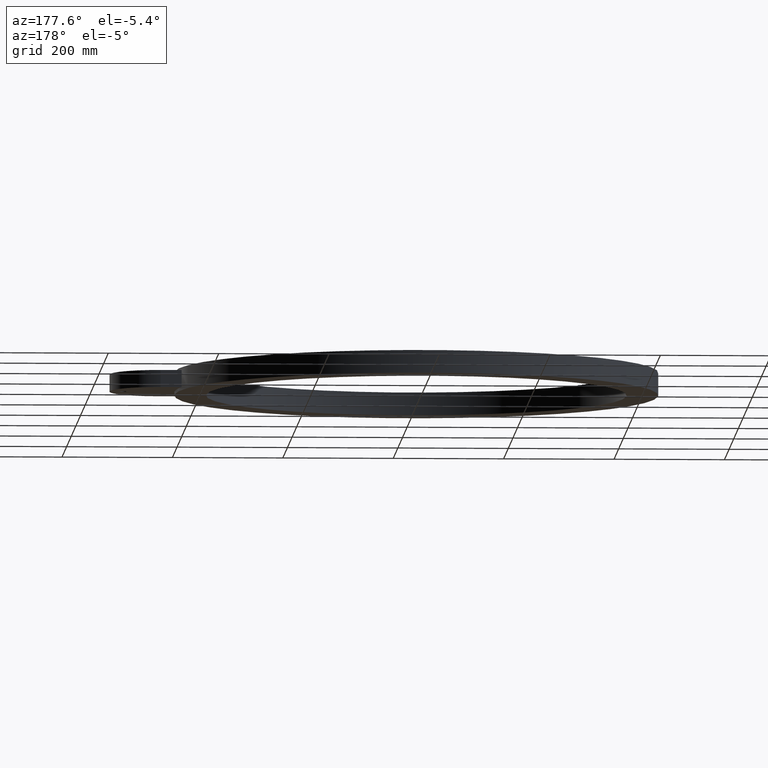
[diagram: clean part render]
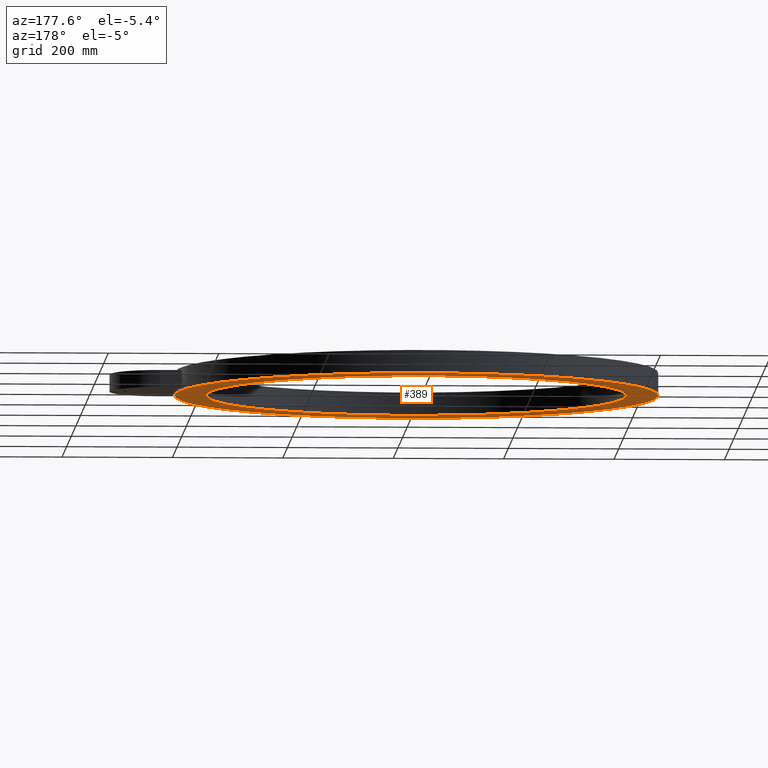
[diagram: same view with one face highlighted and labeled with its STEP entity id]
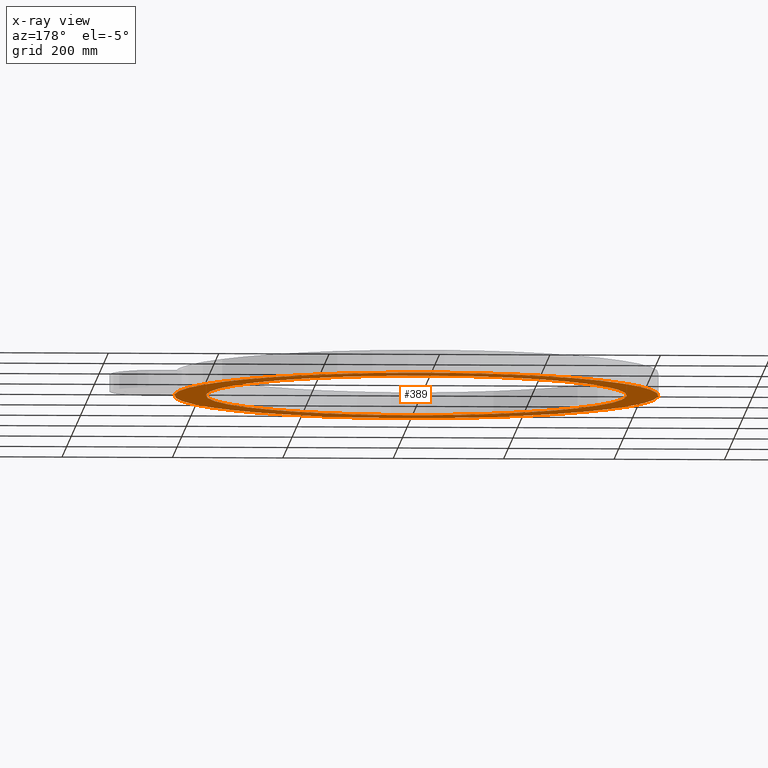
[diagram: x-ray of the same camera — body ghosted, the highlighted face saturated]
A machine part, auxiliary view. The second image highlights one B-rep face of the part: STEP entity #389.
The next image is the same camera in x-ray: the body ghosted, the highlighted face saturated — about 0% of this face is hidden behind the body in this view.
In plain terms, the highlighted planar face has unit normal (0, 0, 1).
Its self-contained STEP definition (entity closure, byte-faithful):
#51=AXIS2_PLACEMENT_3D('Circle Axis2P3D',#49,#50,$) ;
#110=AXIS2_PLACEMENT_3D('Circle Axis2P3D',#108,#109,$) ;
#136=AXIS2_PLACEMENT_3D('Circle Axis2P3D',#134,#135,$) ;
#185=AXIS2_PLACEMENT_3D('Circle Axis2P3D',#183,#184,$) ;
#379=AXIS2_PLACEMENT_3D('Plane Axis2P3D',#376,#377,#378) ;
#44=CARTESIAN_POINT('Vertex',(-13.1637384284,7.19138307909,-0.812500000003)) ;
#49=CARTESIAN_POINT('Axis2P3D Location',(8.52336574023E-017,-6.99353086378E-017,-0.812500000003)) ;
#53=CARTESIAN_POINT('Vertex',(13.1637384284,-7.19138307909,-0.812500000003)) ;
#108=CARTESIAN_POINT('Axis2P3D Location',(8.52336574023E-017,-6.99353086378E-017,-0.812500000003)) ;
#129=CARTESIAN_POINT('Vertex',(17.2500000001,0.,-0.812500000003)) ;
#134=CARTESIAN_POINT('Axis2P3D Location',(0.,0.,-0.812500000003)) ;
#138=CARTESIAN_POINT('Vertex',(-17.2500000001,2.11251572854E-015,-0.812500000003)) ;
#183=CARTESIAN_POINT('Axis2P3D Location',(0.,0.,-0.812500000003)) ;
#376=CARTESIAN_POINT('Axis2P3D Location',(0.,0.,-0.812500000003)) ;
#50=DIRECTION('Axis2P3D Direction',(0.,-0.,-0.0393700787402)) ;
#109=DIRECTION('Axis2P3D Direction',(0.,-0.,-0.0393700787402)) ;
#135=DIRECTION('Axis2P3D Direction',(0.,0.,0.0393700787402)) ;
#184=DIRECTION('Axis2P3D Direction',(0.,0.,0.0393700787402)) ;
#377=DIRECTION('Axis2P3D Direction',(0.,0.,0.0393700787402)) ;
#378=DIRECTION('Axis2P3D XDirection',(0.0393700787402,0.,0.)) ;
#382=ORIENTED_EDGE('',*,*,#187,.F.) ;
#383=ORIENTED_EDGE('',*,*,#140,.F.) ;
#386=ORIENTED_EDGE('',*,*,#55,.T.) ;
#387=ORIENTED_EDGE('',*,*,#112,.T.) ;
#388=FACE_BOUND('',#385,.T.) ;
#389=ADVANCED_FACE('PartBody',(#384,#388),#380,.F.) ;
#52=CIRCLE('generated circle',#51,15.0000000001) ;
#111=CIRCLE('generated circle',#110,15.0000000001) ;
#137=CIRCLE('generated circle',#136,17.2500000001) ;
#186=CIRCLE('generated circle',#185,17.2500000001) ;
#55=EDGE_CURVE('',#54,#45,#52,.F.) ;
#112=EDGE_CURVE('',#45,#54,#111,.F.) ;
#140=EDGE_CURVE('',#130,#139,#137,.T.) ;
#187=EDGE_CURVE('',#139,#130,#186,.T.) ;
#381=EDGE_LOOP('',(#382,#383)) ;
#385=EDGE_LOOP('',(#386,#387)) ;
#384=FACE_OUTER_BOUND('',#381,.T.) ;
#380=PLANE('',#379) ;
#45=VERTEX_POINT('',#44) ;
#54=VERTEX_POINT('',#53) ;
#130=VERTEX_POINT('',#129) ;
#139=VERTEX_POINT('',#138) ;